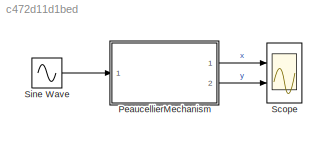
MODEL slx_c472d11d1bed
KIND model
CONFIG AbsTol = 1e-3
CONFIG EnableMultiTasking = on
CONFIG FixedStep = auto
CONFIG MaxStep = auto
CONFIG MinStep = auto
CONFIG RelTol = 1e-3
CONFIG SampleTimeConstraint = Unconstrained
CONFIG SolverName = VariableStepAuto
CONFIG StartTime = 0.0
CONFIG StopTime = 4
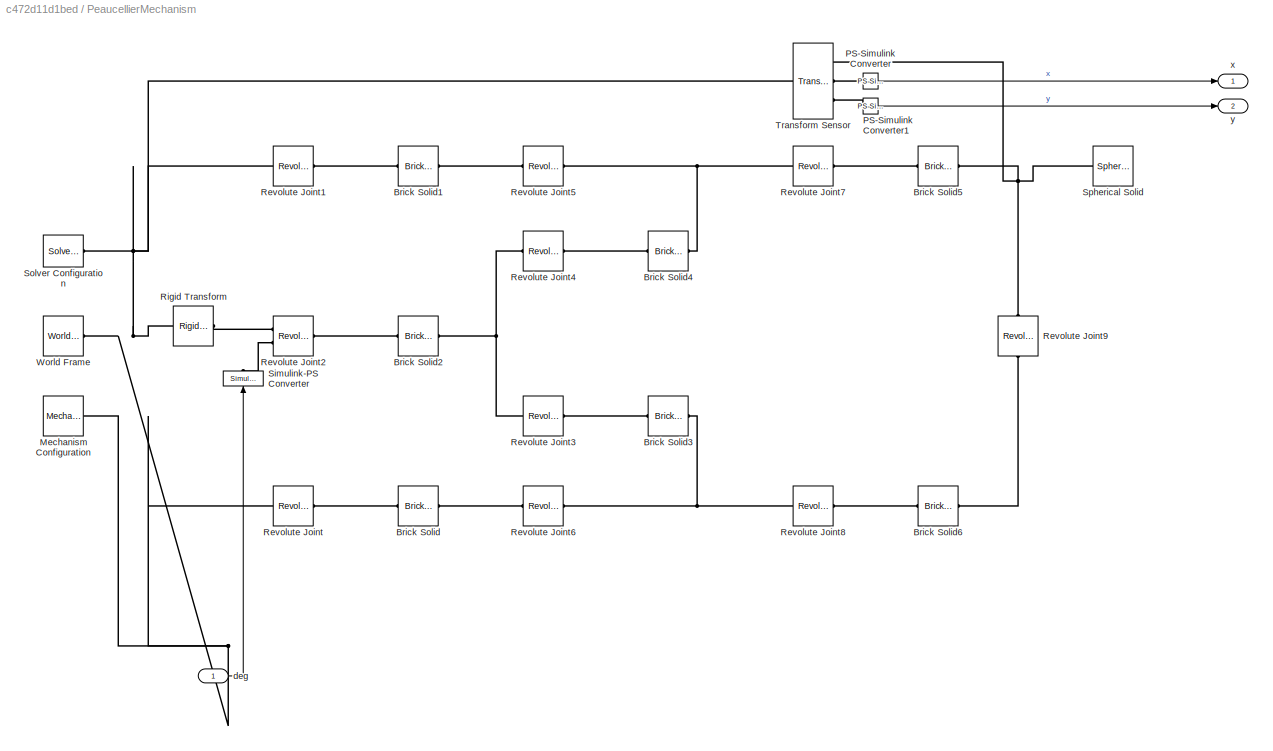
BLOCK [SubSystem] PeaucellierMechanism
  Ports = [1, 2]
  RequestExecContextInheritance = off
BLOCK [Reference] PeaucellierMechanism/Brick Solid  REF=sm_lib/Body Elements/Brick Solid
  NameLocation = left
  Ports = [0, 0, 0, 0, 0, 1, 1]
  SourceBlock = sm_lib/Body Elements/Brick Solid
  SourceProductBaseCode = MS
  SourceType = Brick Solid
BLOCK [Reference] PeaucellierMechanism/Brick Solid1  REF=sm_lib/Body Elements/Brick Solid
  NameLocation = left
  Ports = [0, 0, 0, 0, 0, 1, 1]
  SourceBlock = sm_lib/Body Elements/Brick Solid
  SourceProductBaseCode = MS
  SourceType = Brick Solid
BLOCK [Reference] PeaucellierMechanism/Brick Solid2  REF=sm_lib/Body Elements/Brick Solid
  NameLocation = left
  Ports = [0, 0, 0, 0, 0, 1, 1]
  SourceBlock = sm_lib/Body Elements/Brick Solid
  SourceProductBaseCode = MS
  SourceType = Brick Solid
BLOCK [Reference] PeaucellierMechanism/Brick Solid3  REF=sm_lib/Body Elements/Brick Solid
  NameLocation = left
  Ports = [0, 0, 0, 0, 0, 1, 1]
  SourceBlock = sm_lib/Body Elements/Brick Solid
  SourceProductBaseCode = MS
  SourceType = Brick Solid
BLOCK [Reference] PeaucellierMechanism/Brick Solid4  REF=sm_lib/Body Elements/Brick Solid
  NameLocation = left
  Ports = [0, 0, 0, 0, 0, 1, 1]
  SourceBlock = sm_lib/Body Elements/Brick Solid
  SourceProductBaseCode = MS
  SourceType = Brick Solid
BLOCK [Reference] PeaucellierMechanism/Brick Solid5  REF=sm_lib/Body Elements/Brick Solid
  NameLocation = left
  Ports = [0, 0, 0, 0, 0, 1, 1]
  SourceBlock = sm_lib/Body Elements/Brick Solid
  SourceProductBaseCode = MS
  SourceType = Brick Solid
BLOCK [Reference] PeaucellierMechanism/Brick Solid6  REF=sm_lib/Body Elements/Brick Solid
  NameLocation = left
  Ports = [0, 0, 0, 0, 0, 1, 1]
  SourceBlock = sm_lib/Body Elements/Brick Solid
  SourceProductBaseCode = MS
  SourceType = Brick Solid
BLOCK [Reference] PeaucellierMechanism/Mechanism Configuration  REF=sm_lib/Utilities/Mechanism
Configuration
  Ports = [0, 0, 0, 0, 0, 0, 1]
  SourceBlock = sm_lib/Utilities/Mechanism\nConfiguration
  SourceProductBaseCode = MS
  SourceType = Mechanism\nConfiguration
BLOCK [Reference] PeaucellierMechanism/PS-Simulink Converter  REF=nesl_utility/PS-Simulink
Converter
  Ports = [0, 1, 0, 0, 0, 1]
  SourceBlock = nesl_utility/PS-Simulink\nConverter
  SourceProductBaseCode = PW,SS
  SourceType = PS-Simulink\nConverter
BLOCK [Reference] PeaucellierMechanism/PS-Simulink Converter1  REF=nesl_utility/PS-Simulink
Converter
  Ports = [0, 1, 0, 0, 0, 1]
  SourceBlock = nesl_utility/PS-Simulink\nConverter
  SourceProductBaseCode = PW,SS
  SourceType = PS-Simulink\nConverter
BLOCK [Reference] PeaucellierMechanism/Revolute Joint  REF=sm_lib/Joints/Revolute Joint
  Ports = [0, 0, 0, 0, 0, 1, 1]
  SourceBlock = sm_lib/Joints/Revolute Joint
  SourceProductBaseCode = MS
  SourceType = Revolute Joint
BLOCK [Reference] PeaucellierMechanism/Revolute Joint1  REF=sm_lib/Joints/Revolute Joint
  Ports = [0, 0, 0, 0, 0, 1, 1]
  SourceBlock = sm_lib/Joints/Revolute Joint
  SourceProductBaseCode = MS
  SourceType = Revolute Joint
BLOCK [Reference] PeaucellierMechanism/Revolute Joint2  REF=sm_lib/Joints/Revolute Joint
  Ports = [0, 0, 0, 0, 0, 2, 1]
  SourceBlock = sm_lib/Joints/Revolute Joint
  SourceProductBaseCode = MS
  SourceType = Revolute Joint
BLOCK [Reference] PeaucellierMechanism/Revolute Joint3  REF=sm_lib/Joints/Revolute Joint
  Ports = [0, 0, 0, 0, 0, 1, 1]
  SourceBlock = sm_lib/Joints/Revolute Joint
  SourceProductBaseCode = MS
  SourceType = Revolute Joint
BLOCK [Reference] PeaucellierMechanism/Revolute Joint4  REF=sm_lib/Joints/Revolute Joint
  Ports = [0, 0, 0, 0, 0, 1, 1]
  SourceBlock = sm_lib/Joints/Revolute Joint
  SourceProductBaseCode = MS
  SourceType = Revolute Joint
BLOCK [Reference] PeaucellierMechanism/Revolute Joint5  REF=sm_lib/Joints/Revolute Joint
  Ports = [0, 0, 0, 0, 0, 1, 1]
  SourceBlock = sm_lib/Joints/Revolute Joint
  SourceProductBaseCode = MS
  SourceType = Revolute Joint
BLOCK [Reference] PeaucellierMechanism/Revolute Joint6  REF=sm_lib/Joints/Revolute Joint
  Ports = [0, 0, 0, 0, 0, 1, 1]
  SourceBlock = sm_lib/Joints/Revolute Joint
  SourceProductBaseCode = MS
  SourceType = Revolute Joint
BLOCK [Reference] PeaucellierMechanism/Revolute Joint7  REF=sm_lib/Joints/Revolute Joint
  Ports = [0, 0, 0, 0, 0, 1, 1]
  SourceBlock = sm_lib/Joints/Revolute Joint
  SourceProductBaseCode = MS
  SourceType = Revolute Joint
BLOCK [Reference] PeaucellierMechanism/Revolute Joint8  REF=sm_lib/Joints/Revolute Joint
  Ports = [0, 0, 0, 0, 0, 1, 1]
  SourceBlock = sm_lib/Joints/Revolute Joint
  SourceProductBaseCode = MS
  SourceType = Revolute Joint
BLOCK [Reference] PeaucellierMechanism/Revolute Joint9  REF=sm_lib/Joints/Revolute Joint
  NameLocation = left
  Ports = [0, 0, 0, 0, 0, 1, 1]
  SourceBlock = sm_lib/Joints/Revolute Joint
  SourceProductBaseCode = MS
  SourceType = Revolute Joint
BLOCK [Reference] PeaucellierMechanism/Rigid Transform  REF=sm_lib/Frames and
Transforms/Rigid
Transform
  Ports = [0, 0, 0, 0, 0, 1, 1]
  SourceBlock = sm_lib/Frames and\nTransforms/Rigid\nTransform
  SourceProductBaseCode = MS
  SourceType = Rigid\nTransform
BLOCK [Reference] PeaucellierMechanism/Simulink-PS Converter  REF=nesl_utility/Simulink-PS
Converter
  NameLocation = right
  Ports = [1, 0, 0, 0, 0, 0, 1]
  SourceBlock = nesl_utility/Simulink-PS\nConverter
  SourceProductBaseCode = PW,SS
  SourceType = Simulink-PS\nConverter
BLOCK [Reference] PeaucellierMechanism/Solver Configuration  REF=nesl_utility/Solver
Configuration
  Ports = [0, 0, 0, 0, 0, 0, 1]
  SourceBlock = nesl_utility/Solver\nConfiguration
  SourceProductBaseCode = PW,SS
  SourceType = Solver\nConfiguration
BLOCK [Reference] PeaucellierMechanism/Spherical Solid  REF=sm_lib/Body Elements/Spherical Solid
  NameLocation = top
  Ports = [0, 0, 0, 0, 0, 0, 1]
  SourceBlock = sm_lib/Body Elements/Spherical Solid
  SourceProductBaseCode = MS
  SourceType = Spherical Solid
BLOCK [Reference] PeaucellierMechanism/Transform Sensor  REF=sm_lib/Frames and
Transforms/Transform
Sensor
  Ports = [0, 0, 0, 0, 0, 1, 3]
  SourceBlock = sm_lib/Frames and\nTransforms/Transform\nSensor
  SourceProductBaseCode = MS
  SourceType = Transform\nSensor
BLOCK [Reference] PeaucellierMechanism/World Frame  REF=sm_lib/Frames and
Transforms/World Frame
  Ports = [0, 0, 0, 0, 0, 0, 1]
  SourceBlock = sm_lib/Frames and\nTransforms/World Frame
  SourceProductBaseCode = MS
  SourceType = World Frame
BLOCK [Inport] PeaucellierMechanism/deg
BLOCK [Outport] PeaucellierMechanism/x
BLOCK [Outport] PeaucellierMechanism/y
  Port = 2
BLOCK [Scope] Scope
  Floating = off
  NumInputPorts = 2
  Ports = [2]
  ScopeSpecificationString = Simulink.scopes.TimeScopeBlockCfg('CurrentConfiguration', extmgr.ConfigurationSet(extmgr.Configuration('Core','General UI',true),extmgr.Configuration('Core','Source UI',true),extmgr.Configuration('Sources','WiredSimulink',true),extmgr.Configuration('Visuals','Time Domain',true,'SerializedDisplays',{struct('MinYLimReal','6.66667','MaxYLimReal','26.66667','YLabelReal','','MinYLimMag','6.66667','MaxY...<+1991ch>
BLOCK [Sin] Sine Wave
  Amplitude = 60
  Frequency = pi
  Ports = [0, 1]
  SampleTime = 0
LINE PeaucellierMechanism/PS-Simulink Converter1:1 -> PeaucellierMechanism/y:1
LINE PeaucellierMechanism/PS-Simulink Converter:1 -> PeaucellierMechanism/x:1
LINE PeaucellierMechanism/deg:1 -> PeaucellierMechanism/Simulink-PS Converter:1
LINE PeaucellierMechanism:1 -> Scope:1
LINE PeaucellierMechanism:2 -> Scope:2
LINE Sine Wave:1 -> PeaucellierMechanism:1
PLINE PeaucellierMechanism/Brick Solid1:LConn1 -- PeaucellierMechanism/Revolute Joint1:RConn1
PLINE PeaucellierMechanism/Brick Solid1:RConn1 -- PeaucellierMechanism/Revolute Joint5:LConn1
PLINE PeaucellierMechanism/Brick Solid2:LConn1 -- PeaucellierMechanism/Revolute Joint2:RConn1
PNET net1: PeaucellierMechanism/Brick Solid2:RConn1 -- PeaucellierMechanism/Revolute Joint3:LConn1 -- PeaucellierMechanism/Revolute Joint4:LConn1
PLINE PeaucellierMechanism/Brick Solid3:LConn1 -- PeaucellierMechanism/Revolute Joint3:RConn1
PNET net2: PeaucellierMechanism/Brick Solid3:RConn1 -- PeaucellierMechanism/Revolute Joint6:RConn1 -- PeaucellierMechanism/Revolute Joint8:LConn1
PLINE PeaucellierMechanism/Brick Solid4:LConn1 -- PeaucellierMechanism/Revolute Joint4:RConn1
PNET net3: PeaucellierMechanism/Brick Solid4:RConn1 -- PeaucellierMechanism/Revolute Joint5:RConn1 -- PeaucellierMechanism/Revolute Joint7:LConn1
PLINE PeaucellierMechanism/Brick Solid5:LConn1 -- PeaucellierMechanism/Revolute Joint7:RConn1
PNET net4: PeaucellierMechanism/Brick Solid5:RConn1 -- PeaucellierMechanism/Revolute Joint9:LConn1 -- PeaucellierMechanism/Spherical Solid:RConn1 -- PeaucellierMechanism/Transform Sensor:RConn1
PLINE PeaucellierMechanism/Brick Solid6:LConn1 -- PeaucellierMechanism/Revolute Joint8:RConn1
PLINE PeaucellierMechanism/Brick Solid6:RConn1 -- PeaucellierMechanism/Revolute Joint9:RConn1
PLINE PeaucellierMechanism/Brick Solid:LConn1 -- PeaucellierMechanism/Revolute Joint:RConn1
PLINE PeaucellierMechanism/Brick Solid:RConn1 -- PeaucellierMechanism/Revolute Joint6:LConn1
PNET net5: PeaucellierMechanism/Mechanism Configuration:RConn1 -- PeaucellierMechanism/Revolute Joint1:LConn1 -- PeaucellierMechanism/Revolute Joint:LConn1 -- PeaucellierMechanism/Rigid Transform:LConn1 -- PeaucellierMechanism/Solver Configuration:RConn1 -- PeaucellierMechanism/Transform Sensor:LConn1 -- PeaucellierMechanism/World Frame:RConn1
PLINE PeaucellierMechanism/PS-Simulink Converter1:LConn1 -- PeaucellierMechanism/Transform Sensor:RConn3
PLINE PeaucellierMechanism/PS-Simulink Converter:LConn1 -- PeaucellierMechanism/Transform Sensor:RConn2
PLINE PeaucellierMechanism/Revolute Joint2:LConn1 -- PeaucellierMechanism/Rigid Transform:RConn1
PLINE PeaucellierMechanism/Revolute Joint2:LConn2 -- PeaucellierMechanism/Simulink-PS Converter:RConn1
note: PNET lines group multi-terminal physical nets as a canonical sorted terminal list (undirected conserving connections); 2-terminal nets keep the pairwise PLINE form
